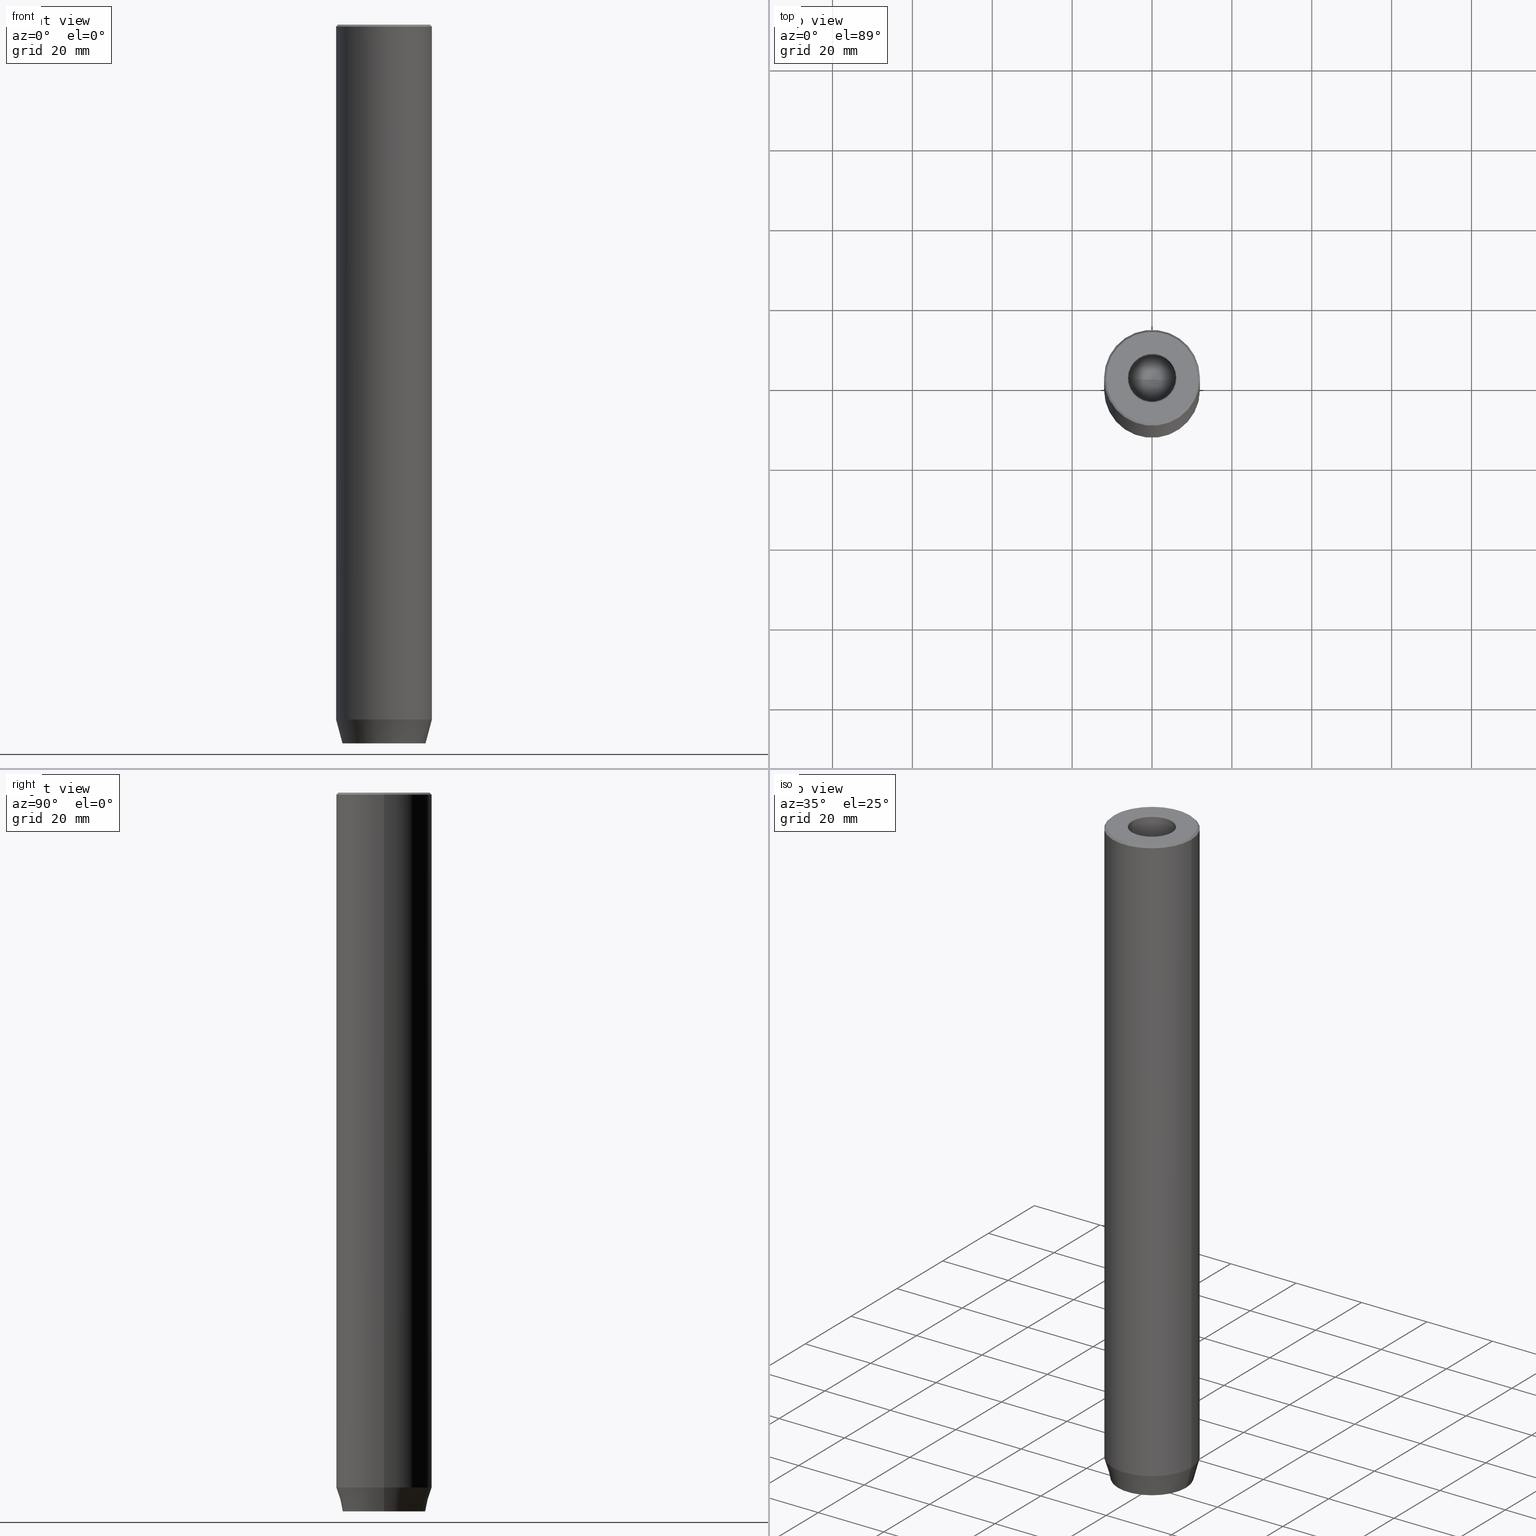
[diagram: canonical four-view strip — front | top / right | iso, engineering-drawing reading convention]
A machine part, canonical four-view strip (front | top / right | iso — engineering-drawing reading convention). The complete STEP part file that produces these views, byte-faithful:
ISO-10303-21;
HEADER;
FILE_DESCRIPTION (( 'STEP AP203' ),
    '1' );
FILE_NAME ('359a.STEP',
    '2024-01-02T17:26:29',
    ( '' ),
    ( '' ),
    'SwSTEP 2.0',
    'SolidWorks 2019',
    '' );
FILE_SCHEMA (( 'CONFIG_CONTROL_DESIGN' ));
ENDSEC;

DATA;
#1 = FACE_OUTER_BOUND ( 'NONE', #503, .T. ) ;
#2 = ORIENTED_EDGE ( 'NONE', *, *, #374, .T. ) ;
#3 = CIRCLE ( 'NONE', #189, 12.00000000000000000 ) ;
#4 = DIRECTION ( 'NONE',  ( -0.000000000000000000, -0.000000000000000000, 1.000000000000000000 ) ) ;
#5 = ORIENTED_EDGE ( 'NONE', *, *, #192, .F. ) ;
#6 = CARTESIAN_POINT ( 'NONE',  ( 4.000000000000000000, 0.000000000000000000, -174.1999999999999886 ) ) ;
#7 = EDGE_CURVE ( 'NONE', #160, #449, #604, .T. ) ;
#8 = DIRECTION ( 'NONE',  ( 1.000000000000000000, 0.000000000000000000, 0.000000000000000000 ) ) ;
#9 = CARTESIAN_POINT ( 'NONE',  ( 0.000000000000000000, 0.000000000000000000, -25.00000000000000000 ) ) ;
#10 = CARTESIAN_POINT ( 'NONE',  ( 2.168404344971008868E-16, 4.618802153517005848, -174.1999999999999886 ) ) ;
#11 = CONICAL_SURFACE ( 'NONE', #43, 11.50000000000003553, 0.7853981633974621568 ) ;
#12 = FACE_OUTER_BOUND ( 'NONE', #227, .T. ) ;
#13 = EDGE_CURVE ( 'NONE', #545, #160, #3, .T. ) ;
#14 = ORIENTED_EDGE ( 'NONE', *, *, #392, .T. ) ;
#15 = APPLICATION_CONTEXT ( 'configuration controlled 3d designs of mechanical parts and assemblies' ) ;
#16 = EDGE_CURVE ( 'NONE', #615, #29, #609, .T. ) ;
#17 = VERTEX_POINT ( 'NONE', #317 ) ;
#18 = DATE_AND_TIME ( #462, #214 ) ;
#19 = ORIENTED_EDGE ( 'NONE', *, *, #361, .T. ) ;
#20 = DIRECTION ( 'NONE',  ( 0.8571673007021117785, 0.000000000000000000, 0.5150380749100550437 ) ) ;
#21 = ORIENTED_EDGE ( 'NONE', *, *, #221, .T. ) ;
#22 = CIRCLE ( 'NONE', #122, 0.2999999999999999334 ) ;
#23 = CARTESIAN_POINT ( 'NONE',  ( 0.000000000000000000, 0.000000000000000000, -174.1999999999999886 ) ) ;
#24 = VERTEX_POINT ( 'NONE', #558 ) ;
#25 = DIRECTION ( 'NONE',  ( -1.000000000000000000, 3.755786496842898071E-16, 0.000000000000000000 ) ) ;
#26 = ADVANCED_FACE ( 'NONE', ( #617 ), #175, .F. ) ;
#27 = VERTEX_POINT ( 'NONE', #63 ) ;
#28 = CARTESIAN_POINT ( 'NONE',  ( 0.000000000000000000, 0.000000000000000000, 0.000000000000000000 ) ) ;
#29 = VERTEX_POINT ( 'NONE', #10 ) ;
#30 = CONICAL_SURFACE ( 'NONE', #396, 5.999999999999995559, 1.029744258676653423 ) ;
#31 = COORDINATED_UNIVERSAL_TIME_OFFSET ( 1, 0, .AHEAD. ) ;
#32 = CARTESIAN_POINT ( 'NONE',  ( -1.999999999999999112, -3.464101615137755275, -180.0000000000000000 ) ) ;
#33 = DIRECTION ( 'NONE',  ( -0.000000000000000000, -0.000000000000000000, 1.000000000000000000 ) ) ;
#34 = CIRCLE ( 'NONE', #480, 11.50000000000003553 ) ;
#35 = ORIENTED_EDGE ( 'NONE', *, *, #142, .F. ) ;
#36 = CC_DESIGN_PERSON_AND_ORGANIZATION_ASSIGNMENT ( #616, #174, ( #577 ) ) ;
#37 = CARTESIAN_POINT ( 'NONE',  ( -4.000000000000001776, -2.309401076758503368, -180.0000000000000000 ) ) ;
#38 = LINE ( 'NONE', #585, #455 ) ;
#39 = ORIENTED_EDGE ( 'NONE', *, *, #498, .F. ) ;
#40 = DIRECTION ( 'NONE',  ( -0.000000000000000000, -0.000000000000000000, 1.000000000000000000 ) ) ;
#41 = APPROVAL_STATUS ( 'not_yet_approved' ) ;
#42 = DIRECTION ( 'NONE',  ( -0.4999999999999999445, 0.8660254037844387076, 0.000000000000000000 ) ) ;
#43 = AXIS2_PLACEMENT_3D ( 'NONE', #548, #111, #453 ) ;
#44 = DATE_TIME_ROLE ( 'classification_date' ) ;
#45 = LINE ( 'NONE', #637, #574 ) ;
#46 = ORGANIZATION ( 'NEUR�EN�', 'NEUR�EN�', '' ) ;
#47 = ADVANCED_FACE ( 'NONE', ( #359 ), #133, .T. ) ;
#48 = CARTESIAN_POINT ( 'NONE',  ( 0.000000000000000000, 0.000000000000000000, 0.000000000000000000 ) ) ;
#49 = DIRECTION ( 'NONE',  ( 1.000000000000000000, 0.000000000000000000, 0.000000000000000000 ) ) ;
#50 = EDGE_CURVE ( 'NONE', #17, #620, #533, .T. ) ;
#51 = DATE_TIME_ROLE ( 'creation_date' ) ;
#52 = CARTESIAN_POINT ( 'NONE',  ( 0.000000000000000000, 0.000000000000000000, 0.000000000000000000 ) ) ;
#53 = CARTESIAN_POINT ( 'NONE',  ( -6.299999999999996270, 7.715274834628322420E-16, 0.000000000000000000 ) ) ;
#54 = VERTEX_POINT ( 'NONE', #293 ) ;
#55 = VERTEX_POINT ( 'NONE', #37 ) ;
#56 = VECTOR ( 'NONE', #635, 1000.000000000000000 ) ;
#57 = AXIS2_PLACEMENT_3D ( 'NONE', #552, #428, #436 ) ;
#58 = CIRCLE ( 'NONE', #268, 12.00000000000000000 ) ;
#59 = ADVANCED_FACE ( 'NONE', ( #378 ), #420, .F. ) ;
#60 = ORIENTED_EDGE ( 'NONE', *, *, #178, .T. ) ;
#61 = CARTESIAN_POINT ( 'NONE',  ( 4.000000000000000000, 0.000000000000000000, -180.0000000000000000 ) ) ;
#62 = DIRECTION ( 'NONE',  ( 0.5000000000000000000, -0.8660254037844387076, 0.000000000000000000 ) ) ;
#63 = CARTESIAN_POINT ( 'NONE',  ( 4.000000000000000000, 2.309401076758504257, -174.1999999999999886 ) ) ;
#64 = LINE ( 'NONE', #61, #431 ) ;
#65 = AXIS2_PLACEMENT_3D ( 'NONE', #169, #312, #66 ) ;
#66 = DIRECTION ( 'NONE',  ( 1.000000000000000000, 0.000000000000000000, 0.000000000000000000 ) ) ;
#67 = CONICAL_SURFACE ( 'NONE', #103, 11.50000000000003553, 0.7853981633974621568 ) ;
#68 = EDGE_CURVE ( 'NONE', #545, #626, #329, .T. ) ;
#69 = CARTESIAN_POINT ( 'NONE',  ( 0.000000000000000000, 0.000000000000000000, -0.2999999999999999889 ) ) ;
#70 = CC_DESIGN_APPROVAL ( #460, ( #577 ) ) ;
#71 = EDGE_LOOP ( 'NONE', ( #19, #529 ) ) ;
#72 = MECHANICAL_CONTEXT ( 'NONE', #15, 'mechanical' ) ;
#73 = DIRECTION ( 'NONE',  ( 0.000000000000000000, 0.000000000000000000, -1.000000000000000000 ) ) ;
#74 = ORIENTED_EDGE ( 'NONE', *, *, #167, .F. ) ;
#75 = CARTESIAN_POINT ( 'NONE',  ( 12.00000000000000000, 0.000000000000000000, -174.0000000000000000 ) ) ;
#76 = EDGE_LOOP ( 'NONE', ( #39, #272, #14 ) ) ;
#77 = AXIS2_PLACEMENT_3D ( 'NONE', #155, #101, #352 ) ;
#78 =( NAMED_UNIT ( * ) SI_UNIT ( $, .STERADIAN. ) SOLID_ANGLE_UNIT ( ) );
#79 = CARTESIAN_POINT ( 'NONE',  ( 12.00000000000000000, 0.000000000000000000, 0.000000000000000000 ) ) ;
#80 = AXIS2_PLACEMENT_3D ( 'NONE', #159, #62, #354 ) ;
#81 = VECTOR ( 'NONE', #579, 1000.000000000000000 ) ;
#82 = CARTESIAN_POINT ( 'NONE',  ( 5.999999999999996447, 0.000000000000000000, 0.000000000000000000 ) ) ;
#83 = ORIENTED_EDGE ( 'NONE', *, *, #528, .F. ) ;
#84 = APPROVAL_STATUS ( 'not_yet_approved' ) ;
#85 = CARTESIAN_POINT ( 'NONE',  ( -6.561755399804848033E-15, 0.000000000000000000, -28.60516371416536430 ) ) ;
#86 = DIRECTION ( 'NONE',  ( -0.4999999999999998335, -0.8660254037844388186, 0.000000000000000000 ) ) ;
#87 = ORIENTED_EDGE ( 'NONE', *, *, #434, .T. ) ;
#88 = DIRECTION ( 'NONE',  ( 1.000000000000000000, 0.000000000000000000, 0.000000000000000000 ) ) ;
#89 = EDGE_CURVE ( 'NONE', #509, #626, #138, .T. ) ;
#90 = ORIENTED_EDGE ( 'NONE', *, *, #201, .F. ) ;
#91 = CALENDAR_DATE ( 2024, 2, 1 ) ;
#92 = CARTESIAN_POINT ( 'NONE',  ( 5.999999999999996447, 0.000000000000000000, -0.2999999999999999889 ) ) ;
#93 = AXIS2_PLACEMENT_3D ( 'NONE', #426, #86, #375 ) ;
#94 = VERTEX_POINT ( 'NONE', #85 ) ;
#95 = APPROVAL_ROLE ( '' ) ;
#96 = DIRECTION ( 'NONE',  ( -1.000000000000000000, 0.000000000000000000, -0.000000000000000000 ) ) ;
#97 = PLANE ( 'NONE',  #77 ) ;
#98 = SHAPE_DEFINITION_REPRESENTATION ( #204, #454 ) ;
#99 = CARTESIAN_POINT ( 'NONE',  ( 4.000000000000000000, 2.309401076758504257, -174.1999999999999886 ) ) ;
#100 = EDGE_CURVE ( 'NONE', #29, #27, #385, .T. ) ;
#101 = DIRECTION ( 'NONE',  ( 1.000000000000000000, 0.000000000000000000, -0.000000000000000000 ) ) ;
#102 = CARTESIAN_POINT ( 'NONE',  ( 0.000000000000000000, 0.000000000000000000, -0.4999999999999501510 ) ) ;
#103 = AXIS2_PLACEMENT_3D ( 'NONE', #28, #518, #184 ) ;
#104 = LINE ( 'NONE', #299, #172 ) ;
#105 = FACE_BOUND ( 'NONE', #323, .T. ) ;
#106 = ORIENTED_EDGE ( 'NONE', *, *, #498, .T. ) ;
#107 = DIRECTION ( 'NONE',  ( -0.000000000000000000, -0.000000000000000000, 1.000000000000000000 ) ) ;
#108 = ORIENTED_EDGE ( 'NONE', *, *, #597, .T. ) ;
#109 = PRODUCT_RELATED_PRODUCT_CATEGORY ( 'detail', '', ( #250 ) ) ;
#110 = ORIENTED_EDGE ( 'NONE', *, *, #240, .F. ) ;
#111 = DIRECTION ( 'NONE',  ( 0.000000000000000000, 0.000000000000000000, -1.000000000000000000 ) ) ;
#112 = AXIS2_PLACEMENT_3D ( 'NONE', #397, #107, #309 ) ;
#113 = FACE_OUTER_BOUND ( 'NONE', #470, .T. ) ;
#114 = DIRECTION ( 'NONE',  ( -0.000000000000000000, -0.000000000000000000, 1.000000000000000000 ) ) ;
#115 = CARTESIAN_POINT ( 'NONE',  ( 0.000000000000000000, 0.000000000000000000, -174.0000000000000000 ) ) ;
#116 = DIRECTION ( 'NONE',  ( 1.000000000000000000, 0.000000000000000000, 0.000000000000000000 ) ) ;
#117 = EDGE_CURVE ( 'NONE', #463, #55, #515, .T. ) ;
#118 = CC_DESIGN_DATE_AND_TIME_ASSIGNMENT ( #514, #51, ( #577 ) ) ;
#119 = AXIS2_PLACEMENT_3D ( 'NONE', #632, #341, #594 ) ;
#120 = ORIENTED_EDGE ( 'NONE', *, *, #192, .T. ) ;
#121 = PERSON ( 'NEUR�EN�', 'NEUR�EN�', 'NEUR�EN�', ('NEUR�EN�'), ('NEUR�EN�'), ('NEUR�EN�') ) ;
#122 = AXIS2_PLACEMENT_3D ( 'NONE', #472, #235, #342 ) ;
#123 = CIRCLE ( 'NONE', #171, 10.39230484541325872 ) ;
#124 = ORIENTED_EDGE ( 'NONE', *, *, #318, .T. ) ;
#125 = EDGE_LOOP ( 'NONE', ( #225, #106, #595 ) ) ;
#126 = LINE ( 'NONE', #566, #219 ) ;
#127 = EDGE_LOOP ( 'NONE', ( #145, #575, #313, #355 ) ) ;
#128 = EDGE_CURVE ( 'NONE', #509, #195, #491, .T. ) ;
#129 = LINE ( 'NONE', #75, #81 ) ;
#130 = VERTEX_POINT ( 'NONE', #280 ) ;
#131 = VECTOR ( 'NONE', #281, 1000.000000000000000 ) ;
#132 = DIRECTION ( 'NONE',  ( 1.000000000000000000, 0.000000000000000000, 0.000000000000000000 ) ) ;
#133 = CONICAL_SURFACE ( 'NONE', #57, 12.00000000000000000, 0.2617993877991501295 ) ;
#134 = AXIS2_PLACEMENT_3D ( 'NONE', #144, #621, #230 ) ;
#135 = CARTESIAN_POINT ( 'NONE',  ( -4.000000000000000888, 1.502314598737159623E-15, -174.1999999999999886 ) ) ;
#136 = ORIENTED_EDGE ( 'NONE', *, *, #68, .F. ) ;
#137 = PERSON_AND_ORGANIZATION ( #121, #46 ) ;
#138 = LINE ( 'NONE', #238, #222 ) ;
#139 = CC_DESIGN_PERSON_AND_ORGANIZATION_ASSIGNMENT ( #485, #444, ( #202 ) ) ;
#140 = CARTESIAN_POINT ( 'NONE',  ( 0.000000000000000000, 0.000000000000000000, -174.0000000000000000 ) ) ;
#141 = EDGE_LOOP ( 'NONE', ( #278, #191, #547, #415 ) ) ;
#142 = EDGE_CURVE ( 'NONE', #555, #17, #22, .T. ) ;
#143 = APPROVAL_STATUS ( 'not_yet_approved' ) ;
#144 = CARTESIAN_POINT ( 'NONE',  ( 0.000000000000000000, 0.000000000000000000, -0.4999999999999501510 ) ) ;
#145 = ORIENTED_EDGE ( 'NONE', *, *, #542, .T. ) ;
#146 = CARTESIAN_POINT ( 'NONE',  ( 2.168404344971008868E-16, 4.618802153517005848, -174.1999999999999886 ) ) ;
#147 = VECTOR ( 'NONE', #627, 1000.000000000000114 ) ;
#148 = DATE_AND_TIME ( #381, #282 ) ;
#149 = LINE ( 'NONE', #146, #416 ) ;
#150 = CARTESIAN_POINT ( 'NONE',  ( -11.50000000000003553, 0.000000000000000000, 0.000000000000000000 ) ) ;
#151 = DIRECTION ( 'NONE',  ( -0.2588190451025214056, 3.169619151431772953E-17, 0.9659258262890680902 ) ) ;
#152 = PERSON_AND_ORGANIZATION_ROLE ( 'creator' ) ;
#153 = FACE_OUTER_BOUND ( 'NONE', #320, .T. ) ;
#154 = ORIENTED_EDGE ( 'NONE', *, *, #374, .F. ) ;
#155 = CARTESIAN_POINT ( 'NONE',  ( 4.000000000000000000, 0.000000000000000000, -174.1999999999999886 ) ) ;
#156 = ORIENTED_EDGE ( 'NONE', *, *, #361, .F. ) ;
#157 = CC_DESIGN_PERSON_AND_ORGANIZATION_ASSIGNMENT ( #183, #180, ( #250 ) ) ;
#158 = MANIFOLD_SOLID_BREP ( 'Odebrat vysunut�m1', #618 ) ;
#159 = CARTESIAN_POINT ( 'NONE',  ( 1.999999999999999556, -3.464101615137754386, -174.1999999999999886 ) ) ;
#160 = VERTEX_POINT ( 'NONE', #260 ) ;
#161 = DESIGN_CONTEXT ( 'detailed design', #269, 'design' ) ;
#162 = LINE ( 'NONE', #6, #508 ) ;
#163 = VECTOR ( 'NONE', #613, 1000.000000000000000 ) ;
#164 = CIRCLE ( 'NONE', #410, 5.999999999999995559 ) ;
#165 = DIRECTION ( 'NONE',  ( 1.000000000000000000, 0.000000000000000000, 0.000000000000000000 ) ) ;
#166 = ADVANCED_FACE ( 'NONE', ( #252 ), #388, .T. ) ;
#167 = EDGE_CURVE ( 'NONE', #54, #17, #104, .T. ) ;
#168 = EDGE_LOOP ( 'NONE', ( #321, #430 ) ) ;
#169 = CARTESIAN_POINT ( 'NONE',  ( 0.000000000000000000, 0.000000000000000000, 0.000000000000000000 ) ) ;
#170 = DIRECTION ( 'NONE',  ( 1.000000000000000000, 0.000000000000000000, 0.000000000000000000 ) ) ;
#171 = AXIS2_PLACEMENT_3D ( 'NONE', #623, #33, #243 ) ;
#172 = VECTOR ( 'NONE', #4, 1000.000000000000000 ) ;
#173 = CIRCLE ( 'NONE', #134, 12.00000000000000000 ) ;
#174 = PERSON_AND_ORGANIZATION_ROLE ( 'creator' ) ;
#175 = CYLINDRICAL_SURFACE ( 'NONE', #559, 5.999999999999996447 ) ;
#176 = DIRECTION ( 'NONE',  ( -0.000000000000000000, -0.000000000000000000, -1.000000000000000000 ) ) ;
#177 = LOCAL_TIME ( 18, 26, 29.00000000000000000, #390 ) ;
#178 = EDGE_CURVE ( 'NONE', #424, #412, #301, .T. ) ;
#179 = ORIENTED_EDGE ( 'NONE', *, *, #442, .T. ) ;
#180 = PERSON_AND_ORGANIZATION_ROLE ( 'design_owner' ) ;
#181 = DIRECTION ( 'NONE',  ( -3.755786496842898071E-16, -1.000000000000000000, 0.000000000000000000 ) ) ;
#182 = ORIENTED_EDGE ( 'NONE', *, *, #346, .F. ) ;
#183 = PERSON_AND_ORGANIZATION ( #121, #46 ) ;
#184 = DIRECTION ( 'NONE',  ( -1.000000000000000000, 0.000000000000000000, 0.000000000000000000 ) ) ;
#185 = VECTOR ( 'NONE', #496, 999.9999999999998863 ) ;
#186 = ORIENTED_EDGE ( 'NONE', *, *, #13, .T. ) ;
#187 = VECTOR ( 'NONE', #188, 999.9999999999998863 ) ;
#188 = DIRECTION ( 'NONE',  ( 0.8660254037844387076, -0.4999999999999999445, 0.000000000000000000 ) ) ;
#189 = AXIS2_PLACEMENT_3D ( 'NONE', #115, #229, #170 ) ;
#190 = CARTESIAN_POINT ( 'NONE',  ( 4.000000000000000000, -2.309401076758503368, -174.1999999999999886 ) ) ;
#191 = ORIENTED_EDGE ( 'NONE', *, *, #142, .T. ) ;
#192 = EDGE_CURVE ( 'NONE', #195, #449, #305, .T. ) ;
#193 = DIRECTION ( 'NONE',  ( 1.000000000000000000, 0.000000000000000000, 0.000000000000000000 ) ) ;
#194 = FACE_OUTER_BOUND ( 'NONE', #484, .T. ) ;
#195 = VERTEX_POINT ( 'NONE', #495 ) ;
#196 = APPROVAL_DATE_TIME ( #245, #228 ) ;
#197 = CARTESIAN_POINT ( 'NONE',  ( -4.000000000000000000, 2.309401076758504257, -174.1999999999999886 ) ) ;
#198 = ORIENTED_EDGE ( 'NONE', *, *, #447, .T. ) ;
#199 = CARTESIAN_POINT ( 'NONE',  ( 12.00000000000000000, 0.000000000000000000, -174.0000000000000000 ) ) ;
#200 = CIRCLE ( 'NONE', #319, 6.299999999999996270 ) ;
#201 = EDGE_CURVE ( 'NONE', #461, #130, #440, .T. ) ;
#202 = SECURITY_CLASSIFICATION ( '', '', #298 ) ;
#203 = PERSON_AND_ORGANIZATION_ROLE ( 'design_supplier' ) ;
#204 = PRODUCT_DEFINITION_SHAPE ( 'NONE', 'NONE',  #577 ) ;
#205 = CARTESIAN_POINT ( 'NONE',  ( 4.000000000000000000, -2.309401076758503368, -174.1999999999999886 ) ) ;
#206 = DIRECTION ( 'NONE',  ( -0.000000000000000000, -0.000000000000000000, -1.000000000000000000 ) ) ;
#207 = DIRECTION ( 'NONE',  ( 0.000000000000000000, 0.000000000000000000, -1.000000000000000000 ) ) ;
#208 = EDGE_CURVE ( 'NONE', #555, #368, #200, .T. ) ;
#209 = VECTOR ( 'NONE', #538, 1000.000000000000114 ) ;
#210 = DIRECTION ( 'NONE',  ( 0.000000000000000000, 0.000000000000000000, -1.000000000000000000 ) ) ;
#211 = PLANE ( 'NONE',  #556 ) ;
#212 = ORIENTED_EDGE ( 'NONE', *, *, #458, .T. ) ;
#213 = VECTOR ( 'NONE', #330, 1000.000000000000000 ) ;
#214 = LOCAL_TIME ( 18, 26, 29.00000000000000000, #31 ) ;
#215 = ORIENTED_EDGE ( 'NONE', *, *, #13, .F. ) ;
#216 = ORIENTED_EDGE ( 'NONE', *, *, #50, .T. ) ;
#217 = CARTESIAN_POINT ( 'NONE',  ( 6.299999999999996270, 0.000000000000000000, -0.2999999999999999889 ) ) ;
#218 = AXIS2_PLACEMENT_3D ( 'NONE', #246, #40, #493 ) ;
#219 = VECTOR ( 'NONE', #20, 1000.000000000000000 ) ;
#220 = PLANE ( 'NONE',  #267 ) ;
#221 = EDGE_CURVE ( 'NONE', #27, #405, #593, .T. ) ;
#222 = VECTOR ( 'NONE', #523, 999.9999999999998863 ) ;
#223 = CARTESIAN_POINT ( 'NONE',  ( 0.000000000000000000, 0.000000000000000000, 0.000000000000000000 ) ) ;
#224 = ORIENTED_EDGE ( 'NONE', *, *, #544, .F. ) ;
#225 = ORIENTED_EDGE ( 'NONE', *, *, #284, .F. ) ;
#226 = DIRECTION ( 'NONE',  ( 0.000000000000000000, -1.000000000000000000, 0.000000000000000000 ) ) ;
#227 = EDGE_LOOP ( 'NONE', ( #186, #611, #465, #136 ) ) ;
#228 = APPROVAL ( #143, 'NEUR�EN�' ) ;
#229 = DIRECTION ( 'NONE',  ( -0.000000000000000000, -0.000000000000000000, 1.000000000000000000 ) ) ;
#230 = DIRECTION ( 'NONE',  ( 1.000000000000000000, 0.000000000000000000, 0.000000000000000000 ) ) ;
#231 = CIRCLE ( 'NONE', #218, 5.999999999999996447 ) ;
#232 = ORIENTED_EDGE ( 'NONE', *, *, #178, .F. ) ;
#233 = DIRECTION ( 'NONE',  ( 0.000000000000000000, 0.000000000000000000, -1.000000000000000000 ) ) ;
#234 = ORIENTED_EDGE ( 'NONE', *, *, #287, .F. ) ;
#235 = DIRECTION ( 'NONE',  ( 1.224646799147353207E-16, 1.000000000000000000, 0.000000000000000000 ) ) ;
#236 = DIRECTION ( 'NONE',  ( -0.000000000000000000, -0.000000000000000000, 1.000000000000000000 ) ) ;
#237 = ORIENTED_EDGE ( 'NONE', *, *, #240, .T. ) ;
#238 = CARTESIAN_POINT ( 'NONE',  ( 11.50000000000003553, 1.408343819019460515E-15, 0.000000000000000000 ) ) ;
#239 = FACE_OUTER_BOUND ( 'NONE', #127, .T. ) ;
#240 = EDGE_CURVE ( 'NONE', #55, #433, #45, .T. ) ;
#241 = VERTEX_POINT ( 'NONE', #448 ) ;
#242 = EDGE_CURVE ( 'NONE', #368, #555, #636, .T. ) ;
#243 = DIRECTION ( 'NONE',  ( 1.000000000000000000, 0.000000000000000000, 0.000000000000000000 ) ) ;
#244 = ORIENTED_EDGE ( 'NONE', *, *, #551, .F. ) ;
#245 = DATE_AND_TIME ( #91, #177 ) ;
#246 = CARTESIAN_POINT ( 'NONE',  ( 0.000000000000000000, 0.000000000000000000, -0.2999999999999999889 ) ) ;
#247 = VERTEX_POINT ( 'NONE', #456 ) ;
#248 = ADVANCED_FACE ( 'NONE', ( #113 ), #557, .F. ) ;
#249 = CYLINDRICAL_SURFACE ( 'NONE', #507, 12.00000000000000000 ) ;
#250 = PRODUCT ( '359a', '359a', '', ( #72 ) ) ;
#251 = COORDINATED_UNIVERSAL_TIME_OFFSET ( 1, 0, .AHEAD. ) ;
#252 = FACE_OUTER_BOUND ( 'NONE', #622, .T. ) ;
#253 = CARTESIAN_POINT ( 'NONE',  ( 2.000000000000000000, 3.464101615137755275, -180.0000000000000000 ) ) ;
#254 = CIRCLE ( 'NONE', #607, 12.00000000000000000 ) ;
#255 = CC_DESIGN_PERSON_AND_ORGANIZATION_ASSIGNMENT ( #435, #203, ( #304 ) ) ;
#256 = DIRECTION ( 'NONE',  ( 3.755786496842898071E-16, 1.000000000000000000, 0.000000000000000000 ) ) ;
#257 = LINE ( 'NONE', #489, #209 ) ;
#258 = ORIENTED_EDGE ( 'NONE', *, *, #128, .F. ) ;
#259 = EDGE_CURVE ( 'NONE', #380, #54, #519, .T. ) ;
#260 = CARTESIAN_POINT ( 'NONE',  ( -12.00000000000000000, 1.469576158976823947E-15, -174.0000000000000000 ) ) ;
#261 = EDGE_LOOP ( 'NONE', ( #479, #90 ) ) ;
#262 = AXIS2_PLACEMENT_3D ( 'NONE', #394, #441, #351 ) ;
#263 = CARTESIAN_POINT ( 'NONE',  ( 0.000000000000000000, 0.000000000000000000, 0.000000000000000000 ) ) ;
#264 = DIRECTION ( 'NONE',  ( -0.000000000000000000, -0.000000000000000000, 1.000000000000000000 ) ) ;
#265 = EDGE_LOOP ( 'NONE', ( #474, #83, #372, #362 ) ) ;
#266 = DIRECTION ( 'NONE',  ( -0.000000000000000000, -0.000000000000000000, 1.000000000000000000 ) ) ;
#267 = AXIS2_PLACEMENT_3D ( 'NONE', #553, #360, #116 ) ;
#268 = AXIS2_PLACEMENT_3D ( 'NONE', #140, #475, #88 ) ;
#269 = APPLICATION_CONTEXT ( 'configuration controlled 3d designs of mechanical parts and assemblies' ) ;
#270 = APPROVAL_PERSON_ORGANIZATION ( #137, #460, #274 ) ;
#271 = LINE ( 'NONE', #554, #327 ) ;
#272 = ORIENTED_EDGE ( 'NONE', *, *, #284, .T. ) ;
#273 = EDGE_CURVE ( 'NONE', #449, #626, #254, .T. ) ;
#274 = APPROVAL_ROLE ( '' ) ;
#275 = CARTESIAN_POINT ( 'NONE',  ( -4.000000000000000888, 1.502314598737159623E-15, -174.1999999999999886 ) ) ;
#276 = ORIENTED_EDGE ( 'NONE', *, *, #528, .T. ) ;
#277 = DIRECTION ( 'NONE',  ( -0.8660254037844385966, 0.4999999999999998890, 0.000000000000000000 ) ) ;
#278 = ORIENTED_EDGE ( 'NONE', *, *, #208, .F. ) ;
#279 = AXIS2_PLACEMENT_3D ( 'NONE', #631, #425, #132 ) ;
#280 = CARTESIAN_POINT ( 'NONE',  ( 10.39230484541325872, 0.000000000000000000, -180.0000000000000000 ) ) ;
#281 = DIRECTION ( 'NONE',  ( -0.000000000000000000, -0.000000000000000000, 1.000000000000000000 ) ) ;
#282 = LOCAL_TIME ( 18, 26, 29.00000000000000000, #251 ) ;
#283 = ORIENTED_EDGE ( 'NONE', *, *, #542, .F. ) ;
#284 = EDGE_CURVE ( 'NONE', #94, #54, #271, .T. ) ;
#285 = CARTESIAN_POINT ( 'NONE',  ( 2.000000000000000000, 3.464101615137755275, -174.1999999999999886 ) ) ;
#286 = LINE ( 'NONE', #477, #598 ) ;
#287 = EDGE_CURVE ( 'NONE', #241, #463, #414, .T. ) ;
#288 = ORIENTED_EDGE ( 'NONE', *, *, #447, .F. ) ;
#289 = CARTESIAN_POINT ( 'NONE',  ( 0.000000000000000000, 0.000000000000000000, 0.000000000000000000 ) ) ;
#290 = CARTESIAN_POINT ( 'NONE',  ( -12.00000000000000000, 1.469576158976823947E-15, -0.4999999999999501510 ) ) ;
#291 = ORIENTED_EDGE ( 'NONE', *, *, #544, .T. ) ;
#292 = VECTOR ( 'NONE', #401, 1000.000000000000000 ) ;
#293 = CARTESIAN_POINT ( 'NONE',  ( -5.999999999999995559, 7.347880794884114806E-16, -25.00000000000000000 ) ) ;
#294 = DIRECTION ( 'NONE',  ( 0.000000000000000000, 0.000000000000000000, -1.000000000000000000 ) ) ;
#295 = APPROVAL_PERSON_ORGANIZATION ( #634, #297, #95 ) ;
#296 = EDGE_LOOP ( 'NONE', ( #580, #421, #376, #60, #108, #2 ) ) ;
#297 = APPROVAL ( #41, 'NEUR�EN�' ) ;
#298 = SECURITY_CLASSIFICATION_LEVEL ( 'unclassified' ) ;
#299 = CARTESIAN_POINT ( 'NONE',  ( -5.999999999999996447, 7.347880794884115792E-16, 0.000000000000000000 ) ) ;
#300 = DIRECTION ( 'NONE',  ( -0.000000000000000000, -0.000000000000000000, 1.000000000000000000 ) ) ;
#301 = LINE ( 'NONE', #487, #348 ) ;
#302 = CARTESIAN_POINT ( 'NONE',  ( -2.000000000000000000, 3.464101615137755275, -174.1999999999999886 ) ) ;
#303 = TOROIDAL_SURFACE ( 'NONE', #408, 6.299999999999996270, 0.2999999999999999889 ) ;
#304 = PRODUCT_DEFINITION_FORMATION_WITH_SPECIFIED_SOURCE ( 'LIBOVOLN�', '', #250, .NOT_KNOWN. ) ;
#305 = LINE ( 'NONE', #150, #469 ) ;
#306 = ADVANCED_FACE ( 'NONE', ( #610 ), #11, .T. ) ;
#307 = CARTESIAN_POINT ( 'NONE',  ( 0.000000000000000000, 0.000000000000000000, -25.00000000000000000 ) ) ;
#308 = EDGE_LOOP ( 'NONE', ( #427, #512, #517, #21 ) ) ;
#309 = DIRECTION ( 'NONE',  ( 1.000000000000000000, 0.000000000000000000, 0.000000000000000000 ) ) ;
#310 = EDGE_LOOP ( 'NONE', ( #446, #400, #216, #497 ) ) ;
#311 = VECTOR ( 'NONE', #391, 999.9999999999998863 ) ;
#312 = DIRECTION ( 'NONE',  ( 0.000000000000000000, 0.000000000000000000, -1.000000000000000000 ) ) ;
#313 = ORIENTED_EDGE ( 'NONE', *, *, #100, .F. ) ;
#314 = AXIS2_PLACEMENT_3D ( 'NONE', #467, #568, #193 ) ;
#315 = CARTESIAN_POINT ( 'NONE',  ( 1.999999999999999556, -3.464101615137754386, -180.0000000000000000 ) ) ;
#316 = ADVANCED_FACE ( 'NONE', ( #614 ), #303, .T. ) ;
#317 = CARTESIAN_POINT ( 'NONE',  ( -5.999999999999996447, 7.347880794884115792E-16, -0.2999999999999999889 ) ) ;
#318 = EDGE_CURVE ( 'NONE', #368, #620, #377, .T. ) ;
#319 = AXIS2_PLACEMENT_3D ( 'NONE', #52, #210, #499 ) ;
#320 = EDGE_LOOP ( 'NONE', ( #325, #198, #633, #363 ) ) ;
#321 = ORIENTED_EDGE ( 'NONE', *, *, #242, .T. ) ;
#322 = FACE_BOUND ( 'NONE', #168, .T. ) ;
#323 = EDGE_LOOP ( 'NONE', ( #224, #110, #510, #234, #182, #283 ) ) ;
#324 = PLANE ( 'NONE',  #571 ) ;
#325 = ORIENTED_EDGE ( 'NONE', *, *, #7, .F. ) ;
#326 = CARTESIAN_POINT ( 'NONE',  ( -10.39230484541325872, 1.371133222723355777E-15, -180.0000000000000000 ) ) ;
#327 = VECTOR ( 'NONE', #560, 1000.000000000000000 ) ;
#328 = ADVANCED_FACE ( 'NONE', ( #322, #511 ), #220, .T. ) ;
#329 = LINE ( 'NONE', #79, #457 ) ;
#330 = DIRECTION ( 'NONE',  ( 3.755786496842898071E-16, 1.000000000000000000, 0.000000000000000000 ) ) ;
#331 = APPROVAL_PERSON_ORGANIZATION ( #590, #228, #630 ) ;
#332 = ORIENTED_EDGE ( 'NONE', *, *, #89, .T. ) ;
#333 = DIRECTION ( 'NONE',  ( 0.000000000000000000, 0.000000000000000000, 1.000000000000000000 ) ) ;
#334 = FACE_OUTER_BOUND ( 'NONE', #265, .T. ) ;
#335 = EDGE_LOOP ( 'NONE', ( #244, #520, #179, #288 ) ) ;
#336 = LINE ( 'NONE', #82, #131 ) ;
#337 = CC_DESIGN_DATE_AND_TIME_ASSIGNMENT ( #148, #44, ( #202 ) ) ;
#338 = AXIS2_PLACEMENT_3D ( 'NONE', #275, #25, #181 ) ;
#339 = ORIENTED_EDGE ( 'NONE', *, *, #287, .T. ) ;
#340 = VECTOR ( 'NONE', #418, 999.9999999999998863 ) ;
#341 = DIRECTION ( 'NONE',  ( -0.000000000000000000, -0.000000000000000000, 1.000000000000000000 ) ) ;
#342 = DIRECTION ( 'NONE',  ( -1.000000000000000000, 1.224646799147353207E-16, 0.000000000000000000 ) ) ;
#343 = DIRECTION ( 'NONE',  ( -0.7071067811865574537, 0.000000000000000000, -0.7071067811865376918 ) ) ;
#344 = CARTESIAN_POINT ( 'NONE',  ( 0.000000000000000000, 10.39230484541325872, -180.0000000000000000 ) ) ;
#345 = VECTOR ( 'NONE', #151, 1000.000000000000000 ) ;
#346 = EDGE_CURVE ( 'NONE', #405, #241, #64, .T. ) ;
#347 = APPROVAL_DATE_TIME ( #588, #297 ) ;
#348 = VECTOR ( 'NONE', #492, 1000.000000000000227 ) ;
#349 = DIRECTION ( 'NONE',  ( 1.000000000000000000, 0.000000000000000000, 0.000000000000000000 ) ) ;
#350 = ORIENTED_EDGE ( 'NONE', *, *, #259, .F. ) ;
#351 = DIRECTION ( 'NONE',  ( 1.000000000000000000, 0.000000000000000000, 0.000000000000000000 ) ) ;
#352 = DIRECTION ( 'NONE',  ( -0.000000000000000000, 0.000000000000000000, -1.000000000000000000 ) ) ;
#353 = ORIENTED_EDGE ( 'NONE', *, *, #411, .F. ) ;
#354 = DIRECTION ( 'NONE',  ( 0.8660254037844385966, 0.4999999999999999445, 0.000000000000000000 ) ) ;
#355 = ORIENTED_EDGE ( 'NONE', *, *, #526, .T. ) ;
#356 = EDGE_CURVE ( 'NONE', #27, #424, #162, .T. ) ;
#357 = DIRECTION ( 'NONE',  ( 0.000000000000000000, -1.000000000000000000, 0.000000000000000000 ) ) ;
#358 = AXIS2_PLACEMENT_3D ( 'NONE', #573, #383, #277 ) ;
#359 = FACE_OUTER_BOUND ( 'NONE', #335, .T. ) ;
#360 = DIRECTION ( 'NONE',  ( 0.000000000000000000, -0.000000000000000000, 1.000000000000000000 ) ) ;
#361 = EDGE_CURVE ( 'NONE', #195, #509, #34, .T. ) ;
#362 = ORIENTED_EDGE ( 'NONE', *, *, #488, .T. ) ;
#363 = ORIENTED_EDGE ( 'NONE', *, *, #411, .T. ) ;
#364 = ADVANCED_FACE ( 'NONE', ( #12 ), #550, .T. ) ;
#365 =( NAMED_UNIT ( * ) PLANE_ANGLE_UNIT ( ) SI_UNIT ( $, .RADIAN. ) );
#366 = CARTESIAN_POINT ( 'NONE',  ( -2.000000000000000000, 3.464101615137755275, -174.1999999999999886 ) ) ;
#367 = AXIS2_PLACEMENT_3D ( 'NONE', #223, #452, #8 ) ;
#368 = VERTEX_POINT ( 'NONE', #605 ) ;
#369 = COORDINATED_UNIVERSAL_TIME_OFFSET ( 1, 0, .AHEAD. ) ;
#370 = ORIENTED_EDGE ( 'NONE', *, *, #242, .F. ) ;
#371 = FACE_OUTER_BOUND ( 'NONE', #296, .T. ) ;
#372 = ORIENTED_EDGE ( 'NONE', *, *, #597, .F. ) ;
#373 = CARTESIAN_POINT ( 'NONE',  ( 11.50000000000003553, 1.438959988998142132E-15, 0.000000000000000000 ) ) ;
#374 = EDGE_CURVE ( 'NONE', #24, #615, #429, .T. ) ;
#375 = DIRECTION ( 'NONE',  ( 0.8660254037844387076, -0.4999999999999997780, 0.000000000000000000 ) ) ;
#376 = ORIENTED_EDGE ( 'NONE', *, *, #356, .T. ) ;
#377 = CIRCLE ( 'NONE', #539, 0.2999999999999999889 ) ;
#378 = FACE_OUTER_BOUND ( 'NONE', #76, .T. ) ;
#379 = CARTESIAN_POINT ( 'NONE',  ( -4.000000000000000000, 2.309401076758504257, -180.0000000000000000 ) ) ;
#380 = VERTEX_POINT ( 'NONE', #524 ) ;
#381 = CALENDAR_DATE ( 2024, 2, 1 ) ;
#382 = ADVANCED_FACE ( 'NONE', ( #334 ), #625, .F. ) ;
#383 = DIRECTION ( 'NONE',  ( 0.4999999999999999445, 0.8660254037844387076, -0.000000000000000000 ) ) ;
#384 = EDGE_LOOP ( 'NONE', ( #258, #332, #629, #5 ) ) ;
#385 = LINE ( 'NONE', #285, #187 ) ;
#386 = DIRECTION ( 'NONE',  ( -0.000000000000000000, -0.000000000000000000, 1.000000000000000000 ) ) ;
#387 = EDGE_LOOP ( 'NONE', ( #237, #541, #154, #276 ) ) ;
#388 = CONICAL_SURFACE ( 'NONE', #112, 12.00000000000000000, 0.2617993877991501295 ) ;
#389 = FACE_OUTER_BOUND ( 'NONE', #125, .T. ) ;
#390 = COORDINATED_UNIVERSAL_TIME_OFFSET ( 1, 0, .AHEAD. ) ;
#391 = DIRECTION ( 'NONE',  ( 0.8660254037844387076, -0.4999999999999999445, 0.000000000000000000 ) ) ;
#392 = EDGE_CURVE ( 'NONE', #54, #380, #164, .T. ) ;
#393 = COORDINATED_UNIVERSAL_TIME_OFFSET ( 1, 0, .AHEAD. ) ;
#394 = CARTESIAN_POINT ( 'NONE',  ( 0.000000000000000000, 0.000000000000000000, -180.0000000000000000 ) ) ;
#395 = CARTESIAN_POINT ( 'NONE',  ( -12.00000000000000000, 1.469576158976823947E-15, -174.0000000000000000 ) ) ;
#396 = AXIS2_PLACEMENT_3D ( 'NONE', #307, #386, #540 ) ;
#397 = CARTESIAN_POINT ( 'NONE',  ( 0.000000000000000000, 0.000000000000000000, -174.0000000000000000 ) ) ;
#398 = VECTOR ( 'NONE', #409, 1000.000000000000227 ) ;
#399 = DIRECTION ( 'NONE',  ( -0.8660254037844385966, -0.4999999999999998890, 0.000000000000000000 ) ) ;
#400 = ORIENTED_EDGE ( 'NONE', *, *, #167, .T. ) ;
#401 = DIRECTION ( 'NONE',  ( -0.000000000000000000, -0.000000000000000000, -1.000000000000000000 ) ) ;
#402 = ORIENTED_EDGE ( 'NONE', *, *, #513, .T. ) ;
#403 = ADVANCED_FACE ( 'NONE', ( #194 ), #67, .T. ) ;
#404 =( LENGTH_UNIT ( ) NAMED_UNIT ( * ) SI_UNIT ( .MILLI., .METRE. ) );
#405 = VERTEX_POINT ( 'NONE', #619 ) ;
#406 = CARTESIAN_POINT ( 'NONE',  ( 0.000000000000000000, 0.000000000000000000, -0.2999999999999999889 ) ) ;
#407 = ORIENTED_EDGE ( 'NONE', *, *, #89, .F. ) ;
#408 = AXIS2_PLACEMENT_3D ( 'NONE', #69, #506, #504 ) ;
#409 = DIRECTION ( 'NONE',  ( -0.8660254037844385966, -0.4999999999999998890, 0.000000000000000000 ) ) ;
#410 = AXIS2_PLACEMENT_3D ( 'NONE', #468, #236, #419 ) ;
#411 = EDGE_CURVE ( 'NONE', #626, #449, #173, .T. ) ;
#412 = VERTEX_POINT ( 'NONE', #527 ) ;
#413 = CARTESIAN_POINT ( 'NONE',  ( -12.00000000000000000, 1.469576158976823947E-15, 0.000000000000000000 ) ) ;
#414 = LINE ( 'NONE', #315, #398 ) ;
#415 = ORIENTED_EDGE ( 'NONE', *, *, #318, .F. ) ;
#416 = VECTOR ( 'NONE', #486, 1000.000000000000000 ) ;
#417 = APPROVAL_DATE_TIME ( #18, #460 ) ;
#418 = DIRECTION ( 'NONE',  ( 0.8660254037844387076, 0.4999999999999999445, 0.000000000000000000 ) ) ;
#419 = DIRECTION ( 'NONE',  ( 1.000000000000000000, 0.000000000000000000, 0.000000000000000000 ) ) ;
#420 = CONICAL_SURFACE ( 'NONE', #587, 5.999999999999995559, 1.029744258676653423 ) ;
#421 = ORIENTED_EDGE ( 'NONE', *, *, #100, .T. ) ;
#422 = DIRECTION ( 'NONE',  ( -1.000000000000000000, 0.000000000000000000, -0.000000000000000000 ) ) ;
#423 = ADVANCED_FACE ( 'NONE', ( #239 ), #516, .F. ) ;
#424 = VERTEX_POINT ( 'NONE', #190 ) ;
#425 = DIRECTION ( 'NONE',  ( -0.000000000000000000, -0.000000000000000000, 1.000000000000000000 ) ) ;
#426 = CARTESIAN_POINT ( 'NONE',  ( -1.999999999999999112, -3.464101615137755275, -174.1999999999999886 ) ) ;
#427 = ORIENTED_EDGE ( 'NONE', *, *, #346, .T. ) ;
#428 = DIRECTION ( 'NONE',  ( -0.000000000000000000, -0.000000000000000000, 1.000000000000000000 ) ) ;
#429 = LINE ( 'NONE', #135, #213 ) ;
#430 = ORIENTED_EDGE ( 'NONE', *, *, #208, .T. ) ;
#431 = VECTOR ( 'NONE', #450, 1000.000000000000000 ) ;
#432 = CARTESIAN_POINT ( 'NONE',  ( 8.673617379884035472E-16, -4.618802153517004960, -180.0000000000000000 ) ) ;
#433 = VERTEX_POINT ( 'NONE', #379 ) ;
#434 = EDGE_CURVE ( 'NONE', #615, #433, #286, .T. ) ;
#435 = PERSON_AND_ORGANIZATION ( #121, #46 ) ;
#436 = DIRECTION ( 'NONE',  ( 1.000000000000000000, 0.000000000000000000, 0.000000000000000000 ) ) ;
#437 = CARTESIAN_POINT ( 'NONE',  ( -2.000000000000000000, 3.464101615137755275, -180.0000000000000000 ) ) ;
#438 = ORIENTED_EDGE ( 'NONE', *, *, #442, .F. ) ;
#439 = CYLINDRICAL_SURFACE ( 'NONE', #119, 5.999999999999996447 ) ;
#440 = CIRCLE ( 'NONE', #262, 10.39230484541325872 ) ;
#441 = DIRECTION ( 'NONE',  ( -0.000000000000000000, -0.000000000000000000, 1.000000000000000000 ) ) ;
#442 = EDGE_CURVE ( 'NONE', #130, #545, #129, .T. ) ;
#443 = FACE_OUTER_BOUND ( 'NONE', #310, .T. ) ;
#444 = PERSON_AND_ORGANIZATION_ROLE ( 'classification_officer' ) ;
#445 = PLANE ( 'NONE',  #596 ) ;
#446 = ORIENTED_EDGE ( 'NONE', *, *, #392, .F. ) ;
#447 = EDGE_CURVE ( 'NONE', #160, #545, #58, .T. ) ;
#448 = CARTESIAN_POINT ( 'NONE',  ( 4.000000000000000000, -2.309401076758503368, -180.0000000000000000 ) ) ;
#449 = VERTEX_POINT ( 'NONE', #290 ) ;
#450 = DIRECTION ( 'NONE',  ( 0.000000000000000000, -1.000000000000000000, 0.000000000000000000 ) ) ;
#451 = CC_DESIGN_APPROVAL ( #297, ( #304 ) ) ;
#452 = DIRECTION ( 'NONE',  ( -0.000000000000000000, -0.000000000000000000, 1.000000000000000000 ) ) ;
#453 = DIRECTION ( 'NONE',  ( -1.000000000000000000, 0.000000000000000000, 0.000000000000000000 ) ) ;
#454 = ADVANCED_BREP_SHAPE_REPRESENTATION ( '359a', ( #158, #563 ), #600 ) ;
#455 = VECTOR ( 'NONE', #206, 1000.000000000000000 ) ;
#456 = CARTESIAN_POINT ( 'NONE',  ( 4.336808689942017736E-16, 4.618802153517006737, -180.0000000000000000 ) ) ;
#457 = VECTOR ( 'NONE', #624, 1000.000000000000000 ) ;
#458 = EDGE_CURVE ( 'NONE', #130, #461, #123, .T. ) ;
#459 = DIRECTION ( 'NONE',  ( 1.000000000000000000, 0.000000000000000000, 0.000000000000000000 ) ) ;
#460 = APPROVAL ( #84, 'NEUR�EN�' ) ;
#461 = VERTEX_POINT ( 'NONE', #326 ) ;
#462 = CALENDAR_DATE ( 2024, 2, 1 ) ;
#463 = VERTEX_POINT ( 'NONE', #432 ) ;
#464 = LINE ( 'NONE', #473, #490 ) ;
#465 = ORIENTED_EDGE ( 'NONE', *, *, #273, .T. ) ;
#466 = EDGE_CURVE ( 'NONE', #380, #620, #336, .T. ) ;
#467 = CARTESIAN_POINT ( 'NONE',  ( 0.000000000000000000, 0.000000000000000000, 0.000000000000000000 ) ) ;
#468 = CARTESIAN_POINT ( 'NONE',  ( 0.000000000000000000, 0.000000000000000000, -25.00000000000000000 ) ) ;
#469 = VECTOR ( 'NONE', #343, 999.9999999999998863 ) ;
#470 = EDGE_LOOP ( 'NONE', ( #339, #562, #232, #402 ) ) ;
#471 = LOCAL_TIME ( 18, 26, 29.00000000000000000, #369 ) ;
#472 = CARTESIAN_POINT ( 'NONE',  ( -6.299999999999996270, 7.715274834628321433E-16, -0.2999999999999999889 ) ) ;
#473 = CARTESIAN_POINT ( 'NONE',  ( 8.673617379884035472E-16, -4.618802153517004960, -174.1999999999999886 ) ) ;
#474 = ORIENTED_EDGE ( 'NONE', *, *, #117, .T. ) ;
#475 = DIRECTION ( 'NONE',  ( -0.000000000000000000, -0.000000000000000000, 1.000000000000000000 ) ) ;
#476 = CC_DESIGN_PERSON_AND_ORGANIZATION_ASSIGNMENT ( #494, #152, ( #304 ) ) ;
#477 = CARTESIAN_POINT ( 'NONE',  ( -4.000000000000000000, 2.309401076758504257, -174.1999999999999886 ) ) ;
#478 = ADVANCED_FACE ( 'NONE', ( #628 ), #531, .F. ) ;
#479 = ORIENTED_EDGE ( 'NONE', *, *, #458, .F. ) ;
#480 = AXIS2_PLACEMENT_3D ( 'NONE', #263, #266, #459 ) ;
#481 = DIRECTION ( 'NONE',  ( -0.000000000000000000, -0.000000000000000000, 1.000000000000000000 ) ) ;
#482 = AXIS2_PLACEMENT_3D ( 'NONE', #406, #264, #608 ) ;
#483 = FACE_OUTER_BOUND ( 'NONE', #570, .T. ) ;
#484 = EDGE_LOOP ( 'NONE', ( #407, #156, #120, #353 ) ) ;
#485 = PERSON_AND_ORGANIZATION ( #121, #46 ) ;
#486 = DIRECTION ( 'NONE',  ( -0.000000000000000000, -0.000000000000000000, -1.000000000000000000 ) ) ;
#487 = CARTESIAN_POINT ( 'NONE',  ( 1.999999999999999556, -3.464101615137754386, -174.1999999999999886 ) ) ;
#488 = EDGE_CURVE ( 'NONE', #412, #463, #464, .T. ) ;
#489 = CARTESIAN_POINT ( 'NONE',  ( -1.999999999999999112, -3.464101615137755275, -174.1999999999999886 ) ) ;
#490 = VECTOR ( 'NONE', #176, 1000.000000000000000 ) ;
#491 = CIRCLE ( 'NONE', #314, 11.50000000000003553 ) ;
#492 = DIRECTION ( 'NONE',  ( -0.8660254037844385966, -0.4999999999999998890, 0.000000000000000000 ) ) ;
#493 = DIRECTION ( 'NONE',  ( 1.000000000000000000, 0.000000000000000000, 0.000000000000000000 ) ) ;
#494 = PERSON_AND_ORGANIZATION ( #121, #46 ) ;
#495 = CARTESIAN_POINT ( 'NONE',  ( -11.50000000000003553, 0.000000000000000000, 0.000000000000000000 ) ) ;
#496 = DIRECTION ( 'NONE',  ( 0.8660254037844387076, 0.4999999999999999445, 0.000000000000000000 ) ) ;
#497 = ORIENTED_EDGE ( 'NONE', *, *, #466, .F. ) ;
#498 = EDGE_CURVE ( 'NONE', #94, #380, #126, .T. ) ;
#499 = DIRECTION ( 'NONE',  ( 1.000000000000000000, 0.000000000000000000, 0.000000000000000000 ) ) ;
#500 = ORIENTED_EDGE ( 'NONE', *, *, #50, .F. ) ;
#501 = DIRECTION ( 'NONE',  ( 1.000000000000000000, 0.000000000000000000, 0.000000000000000000 ) ) ;
#502 = CC_DESIGN_APPROVAL ( #228, ( #202 ) ) ;
#503 = EDGE_LOOP ( 'NONE', ( #291, #583, #601, #87 ) ) ;
#504 = DIRECTION ( 'NONE',  ( 1.000000000000000000, 0.000000000000000000, 0.000000000000000000 ) ) ;
#505 = ADVANCED_FACE ( 'NONE', ( #371 ), #324, .T. ) ;
#506 = DIRECTION ( 'NONE',  ( -0.000000000000000000, -0.000000000000000000, 1.000000000000000000 ) ) ;
#507 = AXIS2_PLACEMENT_3D ( 'NONE', #48, #300, #349 ) ;
#508 = VECTOR ( 'NONE', #357, 1000.000000000000000 ) ;
#509 = VERTEX_POINT ( 'NONE', #373 ) ;
#510 = ORIENTED_EDGE ( 'NONE', *, *, #117, .F. ) ;
#511 = FACE_OUTER_BOUND ( 'NONE', #71, .T. ) ;
#512 = ORIENTED_EDGE ( 'NONE', *, *, #513, .F. ) ;
#513 = EDGE_CURVE ( 'NONE', #424, #241, #569, .T. ) ;
#514 = DATE_AND_TIME ( #564, #471 ) ;
#515 = LINE ( 'NONE', #32, #147 ) ;
#516 = PLANE ( 'NONE',  #358 ) ;
#517 = ORIENTED_EDGE ( 'NONE', *, *, #356, .F. ) ;
#518 = DIRECTION ( 'NONE',  ( 0.000000000000000000, 0.000000000000000000, -1.000000000000000000 ) ) ;
#519 = CIRCLE ( 'NONE', #549, 5.999999999999995559 ) ;
#520 = ORIENTED_EDGE ( 'NONE', *, *, #201, .T. ) ;
#521 = LOCAL_TIME ( 18, 26, 29.00000000000000000, #393 ) ;
#522 = APPLICATION_PROTOCOL_DEFINITION ( 'international standard', 'config_control_design', 1994, #15 ) ;
#523 = DIRECTION ( 'NONE',  ( 0.7071067811865574537, 8.659560562355054885E-17, -0.7071067811865376918 ) ) ;
#524 = CARTESIAN_POINT ( 'NONE',  ( 5.999999999999995559, 0.000000000000000000, -25.00000000000000000 ) ) ;
#525 = EDGE_LOOP ( 'NONE', ( #74, #350, #567, #532 ) ) ;
#526 = EDGE_CURVE ( 'NONE', #29, #247, #149, .T. ) ;
#527 = CARTESIAN_POINT ( 'NONE',  ( 8.673617379884035472E-16, -4.618802153517004960, -174.1999999999999886 ) ) ;
#528 = EDGE_CURVE ( 'NONE', #24, #55, #38, .T. ) ;
#529 = ORIENTED_EDGE ( 'NONE', *, *, #128, .T. ) ;
#530 = CALENDAR_DATE ( 2024, 2, 1 ) ;
#531 = PLANE ( 'NONE',  #338 ) ;
#532 = ORIENTED_EDGE ( 'NONE', *, *, #536, .T. ) ;
#533 = CIRCLE ( 'NONE', #279, 5.999999999999996447 ) ;
#534 = CC_DESIGN_SECURITY_CLASSIFICATION ( #202, ( #304 ) ) ;
#535 = FACE_OUTER_BOUND ( 'NONE', #261, .T. ) ;
#536 = EDGE_CURVE ( 'NONE', #620, #17, #231, .T. ) ;
#537 = LINE ( 'NONE', #437, #185 ) ;
#538 = DIRECTION ( 'NONE',  ( -0.8660254037844387076, 0.4999999999999997224, 0.000000000000000000 ) ) ;
#539 = AXIS2_PLACEMENT_3D ( 'NONE', #217, #226, #73 ) ;
#540 = DIRECTION ( 'NONE',  ( 1.000000000000000000, 0.000000000000000000, 0.000000000000000000 ) ) ;
#541 = ORIENTED_EDGE ( 'NONE', *, *, #434, .F. ) ;
#542 = EDGE_CURVE ( 'NONE', #247, #405, #591, .T. ) ;
#543 = UNCERTAINTY_MEASURE_WITH_UNIT (LENGTH_MEASURE( 1.000000000000000082E-05 ), #404, 'distance_accuracy_value', 'NONE');
#544 = EDGE_CURVE ( 'NONE', #433, #247, #537, .T. ) ;
#545 = VERTEX_POINT ( 'NONE', #199 ) ;
#546 = DIRECTION ( 'NONE',  ( -0.000000000000000000, -0.000000000000000000, 1.000000000000000000 ) ) ;
#547 = ORIENTED_EDGE ( 'NONE', *, *, #536, .F. ) ;
#548 = CARTESIAN_POINT ( 'NONE',  ( 0.000000000000000000, 0.000000000000000000, 0.000000000000000000 ) ) ;
#549 = AXIS2_PLACEMENT_3D ( 'NONE', #9, #546, #501 ) ;
#550 = CYLINDRICAL_SURFACE ( 'NONE', #367, 12.00000000000000000 ) ;
#551 = EDGE_CURVE ( 'NONE', #461, #160, #638, .T. ) ;
#552 = CARTESIAN_POINT ( 'NONE',  ( 0.000000000000000000, 0.000000000000000000, -174.0000000000000000 ) ) ;
#553 = CARTESIAN_POINT ( 'NONE',  ( 0.000000000000000000, 0.000000000000000000, 0.000000000000000000 ) ) ;
#554 = CARTESIAN_POINT ( 'NONE',  ( -5.999999999999995559, 7.347880794884114806E-16, -25.00000000000000000 ) ) ;
#555 = VERTEX_POINT ( 'NONE', #53 ) ;
#556 = AXIS2_PLACEMENT_3D ( 'NONE', #302, #42, #399 ) ;
#557 = PLANE ( 'NONE',  #80 ) ;
#558 = CARTESIAN_POINT ( 'NONE',  ( -4.000000000000001776, -2.309401076758503368, -174.1999999999999886 ) ) ;
#559 = AXIS2_PLACEMENT_3D ( 'NONE', #565, #114, #165 ) ;
#560 = DIRECTION ( 'NONE',  ( -0.8571673007021117785, 1.049727191138617956E-16, 0.5150380749100550437 ) ) ;
#561 = ADVANCED_FACE ( 'NONE', ( #443 ), #439, .F. ) ;
#562 = ORIENTED_EDGE ( 'NONE', *, *, #488, .F. ) ;
#563 = AXIS2_PLACEMENT_3D ( 'NONE', #289, #333, #572 ) ;
#564 = CALENDAR_DATE ( 2024, 2, 1 ) ;
#565 = CARTESIAN_POINT ( 'NONE',  ( 0.000000000000000000, 0.000000000000000000, 0.000000000000000000 ) ) ;
#566 = CARTESIAN_POINT ( 'NONE',  ( 5.999999999999995559, 0.000000000000000000, -25.00000000000000000 ) ) ;
#567 = ORIENTED_EDGE ( 'NONE', *, *, #466, .T. ) ;
#568 = DIRECTION ( 'NONE',  ( -0.000000000000000000, -0.000000000000000000, 1.000000000000000000 ) ) ;
#569 = LINE ( 'NONE', #205, #56 ) ;
#570 = EDGE_LOOP ( 'NONE', ( #35, #370, #124, #500 ) ) ;
#571 = AXIS2_PLACEMENT_3D ( 'NONE', #23, #233, #422 ) ;
#572 = DIRECTION ( 'NONE',  ( 1.000000000000000000, 0.000000000000000000, 0.000000000000000000 ) ) ;
#573 = CARTESIAN_POINT ( 'NONE',  ( 2.000000000000000000, 3.464101615137755275, -174.1999999999999886 ) ) ;
#574 = VECTOR ( 'NONE', #256, 1000.000000000000000 ) ;
#575 = ORIENTED_EDGE ( 'NONE', *, *, #221, .F. ) ;
#576 = ADVANCED_FACE ( 'NONE', ( #153 ), #249, .T. ) ;
#577 = PRODUCT_DEFINITION ( 'NEZN�M�', '', #304, #161 ) ;
#578 = APPLICATION_PROTOCOL_DEFINITION ( 'international standard', 'config_control_design', 1994, #269 ) ;
#579 = DIRECTION ( 'NONE',  ( 0.2588190451025214056, 0.000000000000000000, 0.9659258262890680902 ) ) ;
#580 = ORIENTED_EDGE ( 'NONE', *, *, #16, .T. ) ;
#581 = CARTESIAN_POINT ( 'NONE',  ( 0.000000000000000000, 0.000000000000000000, -25.00000000000000000 ) ) ;
#582 = DIRECTION ( 'NONE',  ( -0.000000000000000000, -0.000000000000000000, -1.000000000000000000 ) ) ;
#583 = ORIENTED_EDGE ( 'NONE', *, *, #526, .F. ) ;
#584 = DIRECTION ( 'NONE',  ( 1.000000000000000000, 0.000000000000000000, 0.000000000000000000 ) ) ;
#585 = CARTESIAN_POINT ( 'NONE',  ( -4.000000000000001776, -2.309401076758503368, -174.1999999999999886 ) ) ;
#586 = ADVANCED_FACE ( 'NONE', ( #389 ), #30, .F. ) ;
#587 = AXIS2_PLACEMENT_3D ( 'NONE', #581, #481, #584 ) ;
#588 = DATE_AND_TIME ( #530, #521 ) ;
#589 = CARTESIAN_POINT ( 'NONE',  ( 12.00000000000000000, 0.000000000000000000, -0.4999999999999501510 ) ) ;
#590 = PERSON_AND_ORGANIZATION ( #121, #46 ) ;
#591 = LINE ( 'NONE', #253, #311 ) ;
#592 = ADVANCED_FACE ( 'NONE', ( #105, #535 ), #445, .T. ) ;
#593 = LINE ( 'NONE', #99, #292 ) ;
#594 = DIRECTION ( 'NONE',  ( 1.000000000000000000, 0.000000000000000000, 0.000000000000000000 ) ) ;
#595 = ORIENTED_EDGE ( 'NONE', *, *, #259, .T. ) ;
#596 = AXIS2_PLACEMENT_3D ( 'NONE', #344, #294, #96 ) ;
#597 = EDGE_CURVE ( 'NONE', #412, #24, #257, .T. ) ;
#598 = VECTOR ( 'NONE', #582, 1000.000000000000000 ) ;
#599 = FACE_OUTER_BOUND ( 'NONE', #308, .T. ) ;
#600 =( GEOMETRIC_REPRESENTATION_CONTEXT ( 3 ) GLOBAL_UNCERTAINTY_ASSIGNED_CONTEXT ( ( #543 ) ) GLOBAL_UNIT_ASSIGNED_CONTEXT ( ( #404, #365, #78 ) ) REPRESENTATION_CONTEXT ( 'NONE', 'WORKASPACE' ) );
#601 = ORIENTED_EDGE ( 'NONE', *, *, #16, .F. ) ;
#602 = ORIENTED_EDGE ( 'NONE', *, *, #551, .T. ) ;
#603 = TOROIDAL_SURFACE ( 'NONE', #482, 6.299999999999996270, 0.2999999999999999889 ) ;
#604 = LINE ( 'NONE', #413, #163 ) ;
#605 = CARTESIAN_POINT ( 'NONE',  ( 6.299999999999996270, 0.000000000000000000, 0.000000000000000000 ) ) ;
#606 = ADVANCED_FACE ( 'NONE', ( #1 ), #211, .F. ) ;
#607 = AXIS2_PLACEMENT_3D ( 'NONE', #102, #207, #49 ) ;
#608 = DIRECTION ( 'NONE',  ( 1.000000000000000000, 0.000000000000000000, 0.000000000000000000 ) ) ;
#609 = LINE ( 'NONE', #366, #340 ) ;
#610 = FACE_OUTER_BOUND ( 'NONE', #384, .T. ) ;
#611 = ORIENTED_EDGE ( 'NONE', *, *, #7, .T. ) ;
#612 = ADVANCED_FACE ( 'NONE', ( #599 ), #97, .F. ) ;
#613 = DIRECTION ( 'NONE',  ( -0.000000000000000000, -0.000000000000000000, 1.000000000000000000 ) ) ;
#614 = FACE_OUTER_BOUND ( 'NONE', #141, .T. ) ;
#615 = VERTEX_POINT ( 'NONE', #197 ) ;
#616 = PERSON_AND_ORGANIZATION ( #121, #46 ) ;
#617 = FACE_OUTER_BOUND ( 'NONE', #525, .T. ) ;
#618 = CLOSED_SHELL ( 'NONE', ( #316, #561, #59, #306, #166, #364, #592, #328, #576, #47, #403, #586, #26, #639, #606, #478, #382, #248, #612, #423, #505 ) ) ;
#619 = CARTESIAN_POINT ( 'NONE',  ( 4.000000000000000000, 2.309401076758504257, -180.0000000000000000 ) ) ;
#620 = VERTEX_POINT ( 'NONE', #92 ) ;
#621 = DIRECTION ( 'NONE',  ( 0.000000000000000000, 0.000000000000000000, -1.000000000000000000 ) ) ;
#622 = EDGE_LOOP ( 'NONE', ( #212, #602, #215, #438 ) ) ;
#623 = CARTESIAN_POINT ( 'NONE',  ( 0.000000000000000000, 0.000000000000000000, -180.0000000000000000 ) ) ;
#624 = DIRECTION ( 'NONE',  ( -0.000000000000000000, -0.000000000000000000, 1.000000000000000000 ) ) ;
#625 = PLANE ( 'NONE',  #93 ) ;
#626 = VERTEX_POINT ( 'NONE', #589 ) ;
#627 = DIRECTION ( 'NONE',  ( -0.8660254037844387076, 0.4999999999999997224, 0.000000000000000000 ) ) ;
#628 = FACE_OUTER_BOUND ( 'NONE', #387, .T. ) ;
#629 = ORIENTED_EDGE ( 'NONE', *, *, #273, .F. ) ;
#630 = APPROVAL_ROLE ( '' ) ;
#631 = CARTESIAN_POINT ( 'NONE',  ( 0.000000000000000000, 0.000000000000000000, -0.2999999999999999889 ) ) ;
#632 = CARTESIAN_POINT ( 'NONE',  ( 0.000000000000000000, 0.000000000000000000, 0.000000000000000000 ) ) ;
#633 = ORIENTED_EDGE ( 'NONE', *, *, #68, .T. ) ;
#634 = PERSON_AND_ORGANIZATION ( #121, #46 ) ;
#635 = DIRECTION ( 'NONE',  ( -0.000000000000000000, -0.000000000000000000, -1.000000000000000000 ) ) ;
#636 = CIRCLE ( 'NONE', #65, 6.299999999999996270 ) ;
#637 = CARTESIAN_POINT ( 'NONE',  ( -4.000000000000000888, 1.502314598737159623E-15, -180.0000000000000000 ) ) ;
#638 = LINE ( 'NONE', #395, #345 ) ;
#639 = ADVANCED_FACE ( 'NONE', ( #483 ), #603, .T. ) ;
ENDSEC;
END-ISO-10303-21;
